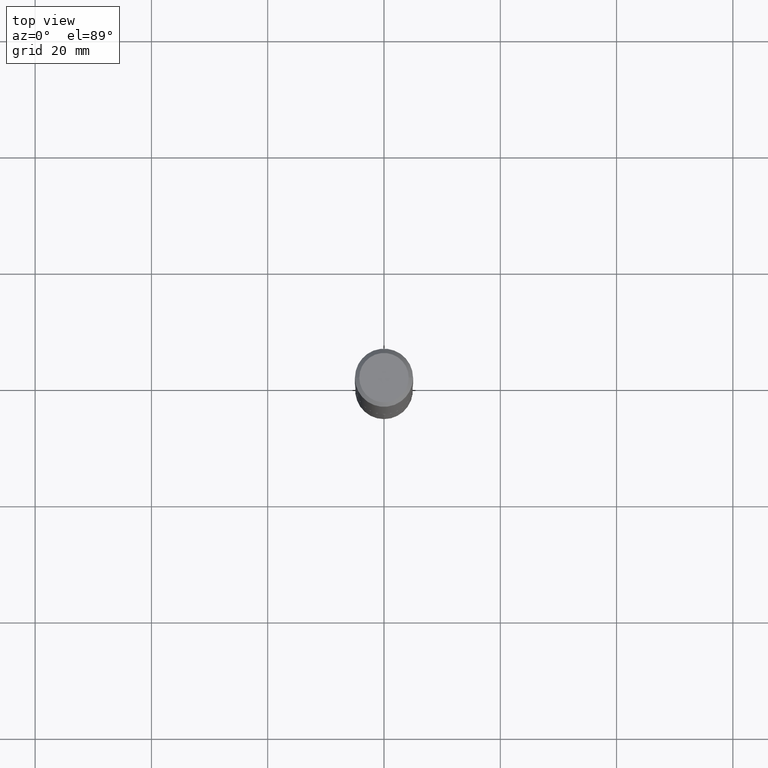
[diagram: clean part render]
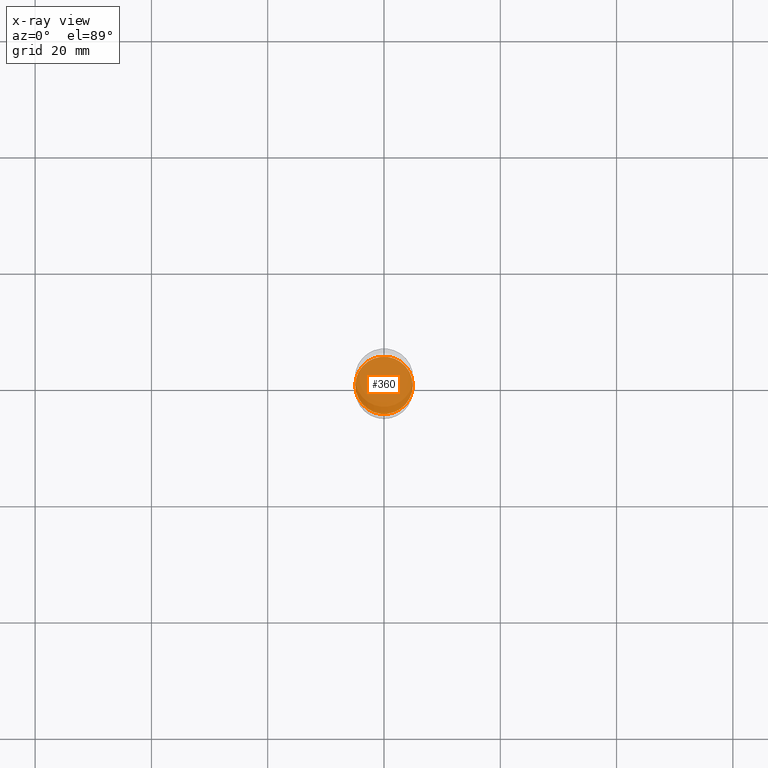
[diagram: x-ray — body ghosted, one internal face saturated and labeled with its STEP entity id]
A machine part, top view, then the same camera in x-ray: the body is ghosted and one INTERNAL B-rep face — a face not visible from any outside direction — is saturated and labeled: STEP entity #360.
In plain terms, the highlighted planar face has unit normal (-0, 0, 1).
Its self-contained STEP definition (entity closure, byte-faithful):
#49 = CARTESIAN_POINT ( 'NONE',  ( 7.412949592189004141E-29, -1.058372738243522642E-14, -3.031299999999999883 ) ) ;
#60 = CIRCLE ( 'NONE', #227, 0.1943999999999999895 ) ;
#70 = AXIS2_PLACEMENT_3D ( 'NONE', #275, #133, #234 ) ;
#85 = FACE_OUTER_BOUND ( 'NONE', #182, .T. ) ;
#129 = CARTESIAN_POINT ( 'NONE',  ( 0.1943999999999999895, -1.194121532697743651E-14, -3.031299999999999883 ) ) ;
#133 = DIRECTION ( 'NONE',  ( -2.445468806185136597E-29, 3.491481338843145583E-15, 1.000000000000000000 ) ) ;
#171 = DIRECTION ( 'NONE',  ( 1.000000000000000000, -6.982962677686267499E-15, 0.000000000000000000 ) ) ;
#182 = EDGE_LOOP ( 'NONE', ( #373, #462 ) ) ;
#183 = EDGE_CURVE ( 'NONE', #363, #391, #60, .T. ) ;
#195 = DIRECTION ( 'NONE',  ( -2.445468806185136597E-29, 3.491481338843145583E-15, 1.000000000000000000 ) ) ;
#224 = DIRECTION ( 'NONE',  ( -2.438088387897960049E-29, 3.491481338843145188E-15, 1.000000000000000000 ) ) ;
#227 = AXIS2_PLACEMENT_3D ( 'NONE', #49, #195, #171 ) ;
#228 = AXIS2_PLACEMENT_3D ( 'NONE', #404, #224, #299 ) ;
#234 = DIRECTION ( 'NONE',  ( 1.000000000000000000, -6.982962677686267499E-15, 0.000000000000000000 ) ) ;
#275 = CARTESIAN_POINT ( 'NONE',  ( 7.412949592189004141E-29, -1.058372738243522642E-14, -3.031299999999999883 ) ) ;
#296 = PLANE ( 'NONE',  #228 ) ;
#299 = DIRECTION ( 'NONE',  ( 1.000000000000000000, -6.982962677686265922E-15, 4.876176775795935793E-29 ) ) ;
#304 = CIRCLE ( 'NONE', #70, 0.1943999999999999895 ) ;
#360 = ADVANCED_FACE ( 'NONE', ( #85 ), #296, .F. ) ;
#363 = VERTEX_POINT ( 'NONE', #441 ) ;
#373 = ORIENTED_EDGE ( 'NONE', *, *, #393, .F. ) ;
#391 = VERTEX_POINT ( 'NONE', #129 ) ;
#393 = EDGE_CURVE ( 'NONE', #391, #363, #304, .T. ) ;
#404 = CARTESIAN_POINT ( 'NONE',  ( 7.412949592189004141E-29, -1.058372738243522642E-14, -3.031299999999999883 ) ) ;
#441 = CARTESIAN_POINT ( 'NONE',  ( -0.1943999999999999895, -9.199783076943480336E-15, -3.031299999999999883 ) ) ;
#462 = ORIENTED_EDGE ( 'NONE', *, *, #183, .F. ) ;